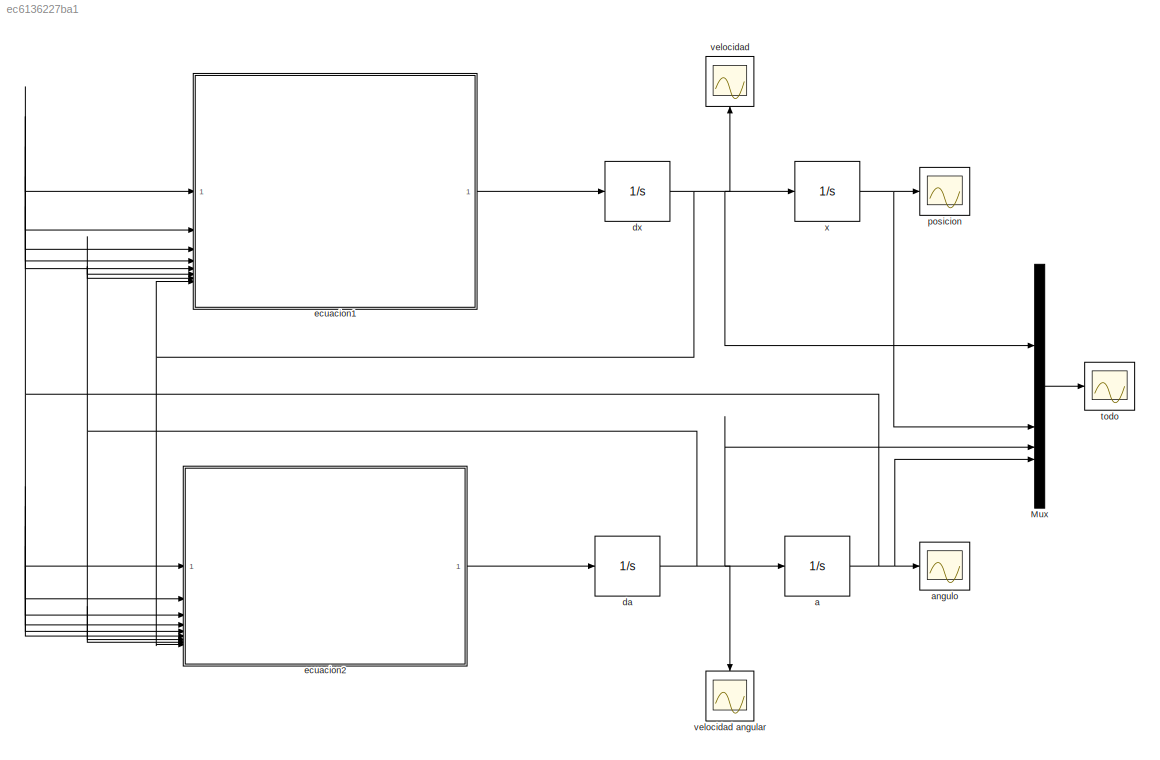
MODEL slx_ec6136227ba1
KIND model
CONFIG AbsTol = auto
CONFIG EnableMultiTasking = off
CONFIG FixedStep = auto
CONFIG InitFcn = Ip = 0.0079;      % Momento de inercia del péndulo\nMc = 0.7031;      % Masa del carro\nLp = 0.3302;      % Longitud desde el pivote hasta el centro de gravedad \nMp = 0.23;        % Masa del péndulo \nFc = 0;           % Fuerza aplicada al carro\nBeq = 4.3;        % Coeficiente de amortiguamiento viscoso del motor \ng = 9.81;         % Gravedad\nBp = 0.0024;   
CONFIG MaxStep = auto
CONFIG MinStep = auto
CONFIG RelTol = 1e-3
CONFIG SampleTimeConstraint = Unconstrained
CONFIG SolverName = ode45
CONFIG StartTime = 0.0
CONFIG StopTime = 10.0
BLOCK [Mux] Mux
  DisplayOption = bar
BLOCK [Integrator] a
  InitialCondition = 0.017
BLOCK [Scope] angulo
  Floating = off
  NumInputPorts = 1
  ScopeSpecificationString = Simulink.scopes.TimeScopeBlockCfg('CurrentConfiguration', extmgr.ConfigurationSet(extmgr.Configuration('Core','General UI',true),extmgr.Configuration('Core','Source UI',true),extmgr.Configuration('Sources','WiredSimulink',true),extmgr.Configuration('Visuals','Time Domain',true,'SerializedDisplays',{struct('MinYLimReal','-12.31989','MaxYLimReal','111.04903','YLabelReal','','MinYLimMag','0.00000','M...<+1490ch>
BLOCK [Integrator] da
BLOCK [Integrator] dx
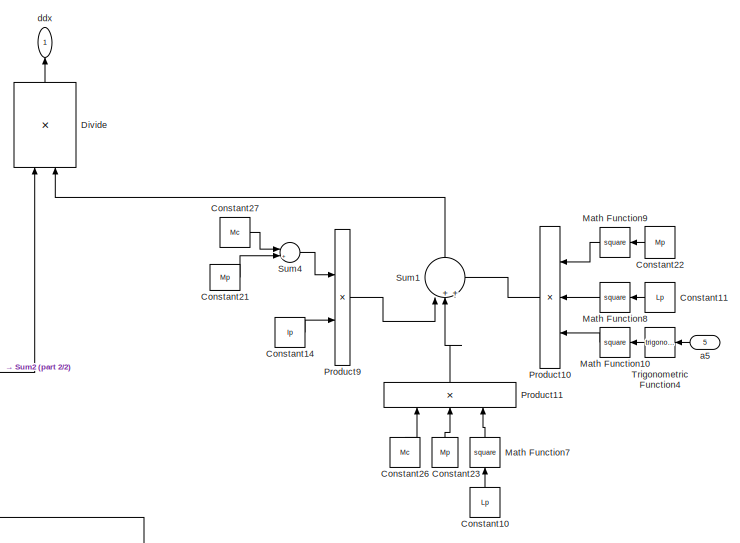
[diagram: ecuacion1 - part 1/2, top right region]
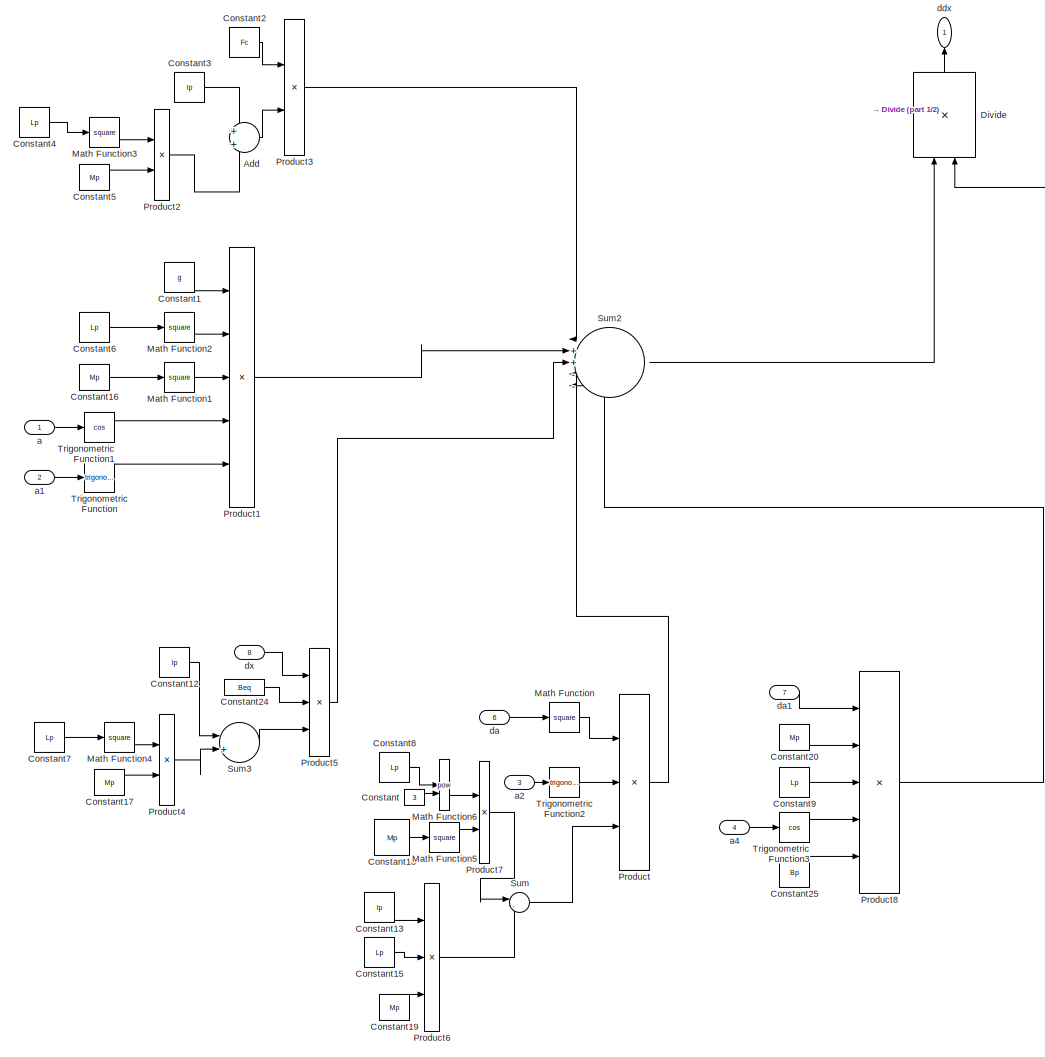
[diagram: ecuacion1 - part 2/2, left side, full height]
BLOCK [SubSystem] ecuacion1
BLOCK [Sum] ecuacion1/Add
BLOCK [Constant] ecuacion1/Constant
  Value = 3
BLOCK [Constant] ecuacion1/Constant1
  Value = g
BLOCK [Constant] ecuacion1/Constant10
  NameLocation = right
  Value = Lp
BLOCK [Constant] ecuacion1/Constant11
  NameLocation = top
  Value = Lp
BLOCK [Constant] ecuacion1/Constant12
  Value = Ip
BLOCK [Constant] ecuacion1/Constant13
  Value = Ip
BLOCK [Constant] ecuacion1/Constant14
  Value = Ip
BLOCK [Constant] ecuacion1/Constant15
  Value = Lp
BLOCK [Constant] ecuacion1/Constant16
  SampleTime = -1
  Value = Mp
  VectorParams1D = off
BLOCK [Constant] ecuacion1/Constant17
  SampleTime = -1
  Value = Mp
  VectorParams1D = off
BLOCK [Constant] ecuacion1/Constant18
  SampleTime = -1
  Value = Mp
  VectorParams1D = off
BLOCK [Constant] ecuacion1/Constant19
  SampleTime = -1
  Value = Mp
  VectorParams1D = off
BLOCK [Constant] ecuacion1/Constant2
  Value = Fc
BLOCK [Constant] ecuacion1/Constant20
  SampleTime = -1
  Value = Mp
  VectorParams1D = off
BLOCK [Constant] ecuacion1/Constant21
  SampleTime = -1
  Value = Mp
  VectorParams1D = off
BLOCK [Constant] ecuacion1/Constant22
  NameLocation = top
  SampleTime = -1
  Value = Mp
  VectorParams1D = off
BLOCK [Constant] ecuacion1/Constant23
  NameLocation = right
  SampleTime = -1
  Value = Mp
  VectorParams1D = off
BLOCK [Constant] ecuacion1/Constant24
  Value = Beq
BLOCK [Constant] ecuacion1/Constant25
  Value = Bp
BLOCK [Constant] ecuacion1/Constant26
  NameLocation = right
  Value = Mc
BLOCK [Constant] ecuacion1/Constant27
  Value = Mc
BLOCK [Constant] ecuacion1/Constant3
  Value = Ip
BLOCK [Constant] ecuacion1/Constant4
  Value = Lp
BLOCK [Constant] ecuacion1/Constant5
  SampleTime = -1
  Value = Mp
  VectorParams1D = off
BLOCK [Constant] ecuacion1/Constant6
  Value = Lp
BLOCK [Constant] ecuacion1/Constant7
  Value = Lp
BLOCK [Constant] ecuacion1/Constant8
  Value = Lp
BLOCK [Constant] ecuacion1/Constant9
  Value = Lp
BLOCK [Product] ecuacion1/Divide
  Inputs = */
  NameLocation = right
BLOCK [Math] ecuacion1/Math Function
  Operator = square
BLOCK [Math] ecuacion1/Math Function1
  Operator = square
BLOCK [Math] ecuacion1/Math Function10
  NameLocation = top
  Operator = square
BLOCK [Math] ecuacion1/Math Function2
  Operator = square
BLOCK [Math] ecuacion1/Math Function3
  Operator = square
BLOCK [Math] ecuacion1/Math Function4
  Operator = square
BLOCK [Math] ecuacion1/Math Function5
  Operator = square
BLOCK [Math] ecuacion1/Math Function6
  Operator = pow
BLOCK [Math] ecuacion1/Math Function7
  NameLocation = right
  Operator = square
BLOCK [Math] ecuacion1/Math Function8
  NameLocation = top
  Operator = square
BLOCK [Math] ecuacion1/Math Function9
  NameLocation = top
  Operator = square
BLOCK [Product] ecuacion1/Product
  Inputs = 3
BLOCK [Product] ecuacion1/Product1
  Inputs = 5
BLOCK [Product] ecuacion1/Product10
  Inputs = 3
  NameLocation = top
BLOCK [Product] ecuacion1/Product11
  Inputs = 3
  NameLocation = right
BLOCK [Product] ecuacion1/Product2
BLOCK [Product] ecuacion1/Product3
BLOCK [Product] ecuacion1/Product4
BLOCK [Product] ecuacion1/Product5
  Inputs = 3
BLOCK [Product] ecuacion1/Product6
  Inputs = 3
BLOCK [Product] ecuacion1/Product7
BLOCK [Product] ecuacion1/Product8
  Inputs = 5
BLOCK [Product] ecuacion1/Product9
BLOCK [Sum] ecuacion1/Sum
  Inputs = |-+
BLOCK [Sum] ecuacion1/Sum1
  Inputs = |+++
  NameLocation = right
BLOCK [Sum] ecuacion1/Sum2
  Inputs = |++---
BLOCK [Sum] ecuacion1/Sum3
  Inputs = |++
BLOCK [Sum] ecuacion1/Sum4
  Inputs = |++
BLOCK [Trigonometry] ecuacion1/Trigonometric Function
BLOCK [Trigonometry] ecuacion1/Trigonometric Function1
  Operator = cos
BLOCK [Trigonometry] ecuacion1/Trigonometric Function2
BLOCK [Trigonometry] ecuacion1/Trigonometric Function3
  Operator = cos
BLOCK [Trigonometry] ecuacion1/Trigonometric Function4
  NameLocation = top
BLOCK [Inport] ecuacion1/a
BLOCK [Inport] ecuacion1/a1
  Port = 2
BLOCK [Inport] ecuacion1/a2
  Port = 3
BLOCK [Inport] ecuacion1/a4
  Port = 4
BLOCK [Inport] ecuacion1/a5
  NameLocation = top
  Port = 5
BLOCK [Inport] ecuacion1/da
  Port = 6
BLOCK [Inport] ecuacion1/da1
  Port = 7
BLOCK [Outport] ecuacion1/ddx
  NameLocation = right
BLOCK [Inport] ecuacion1/dx
  Port = 8
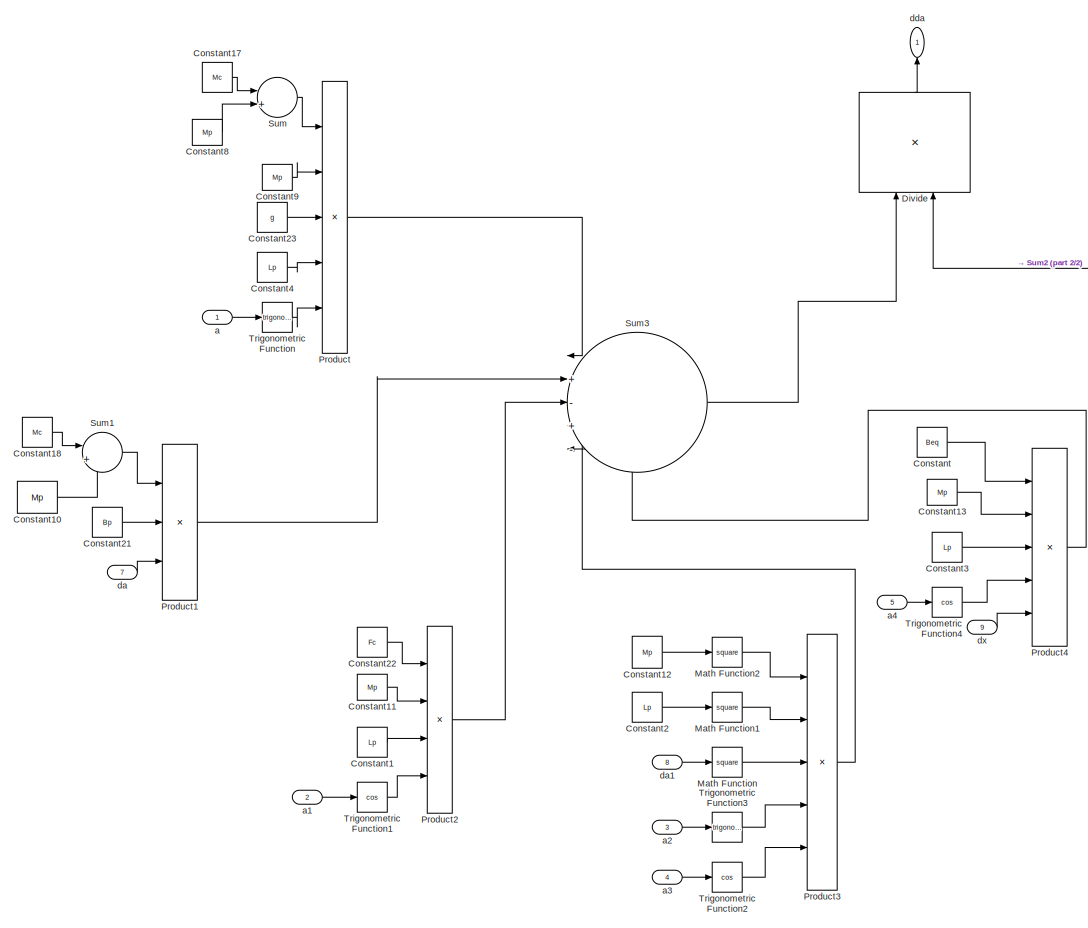
[diagram: ecuacion2 - part 1/2, left side, full height]
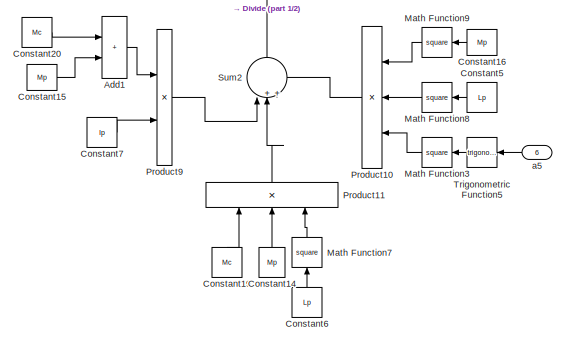
[diagram: ecuacion2 - part 2/2, middle right region]
BLOCK [SubSystem] ecuacion2
BLOCK [Sum] ecuacion2/Add1
  IconShape = rectangular
BLOCK [Constant] ecuacion2/Constant
  Value = Beq
BLOCK [Constant] ecuacion2/Constant1
  Value = Lp
BLOCK [Constant] ecuacion2/Constant10
  SampleTime = -1
  Value = Mp
  VectorParams1D = off
BLOCK [Constant] ecuacion2/Constant11
  SampleTime = -1
  Value = Mp
  VectorParams1D = off
BLOCK [Constant] ecuacion2/Constant12
  SampleTime = -1
  Value = Mp
  VectorParams1D = off
BLOCK [Constant] ecuacion2/Constant13
  SampleTime = -1
  Value = Mp
  VectorParams1D = off
BLOCK [Constant] ecuacion2/Constant14
  NameLocation = right
  SampleTime = -1
  Value = Mp
  VectorParams1D = off
BLOCK [Constant] ecuacion2/Constant15
  SampleTime = -1
  Value = Mp
  VectorParams1D = off
BLOCK [Constant] ecuacion2/Constant16
  NameLocation = top
  SampleTime = -1
  Value = Mp
  VectorParams1D = off
BLOCK [Constant] ecuacion2/Constant17
  Value = Mc
BLOCK [Constant] ecuacion2/Constant18
  Value = Mc
BLOCK [Constant] ecuacion2/Constant19
  NameLocation = right
  Value = Mc
BLOCK [Constant] ecuacion2/Constant2
  Value = Lp
BLOCK [Constant] ecuacion2/Constant20
  Value = Mc
BLOCK [Constant] ecuacion2/Constant21
  Value = Bp
BLOCK [Constant] ecuacion2/Constant22
  Value = Fc
BLOCK [Constant] ecuacion2/Constant23
  Value = g
BLOCK [Constant] ecuacion2/Constant3
  Value = Lp
BLOCK [Constant] ecuacion2/Constant4
  Value = Lp
BLOCK [Constant] ecuacion2/Constant5
  NameLocation = top
  Value = Lp
BLOCK [Constant] ecuacion2/Constant6
  NameLocation = right
  Value = Lp
BLOCK [Constant] ecuacion2/Constant7
  Value = Ip
BLOCK [Constant] ecuacion2/Constant8
  SampleTime = -1
  Value = Mp
  VectorParams1D = off
BLOCK [Constant] ecuacion2/Constant9
  SampleTime = -1
  Value = Mp
  VectorParams1D = off
BLOCK [Product] ecuacion2/Divide
  Inputs = */
  NameLocation = right
BLOCK [Math] ecuacion2/Math Function
  Operator = square
BLOCK [Math] ecuacion2/Math Function1
  Operator = square
BLOCK [Math] ecuacion2/Math Function2
  Operator = square
BLOCK [Math] ecuacion2/Math Function3
  NameLocation = top
  Operator = square
BLOCK [Math] ecuacion2/Math Function7
  NameLocation = right
  Operator = square
BLOCK [Math] ecuacion2/Math Function8
  NameLocation = top
  Operator = square
BLOCK [Math] ecuacion2/Math Function9
  NameLocation = top
  Operator = square
BLOCK [Product] ecuacion2/Product
  Inputs = 5
BLOCK [Product] ecuacion2/Product1
  Inputs = 3
BLOCK [Product] ecuacion2/Product10
  Inputs = 3
  NameLocation = top
BLOCK [Product] ecuacion2/Product11
  Inputs = 3
  NameLocation = right
BLOCK [Product] ecuacion2/Product2
  Inputs = 4
BLOCK [Product] ecuacion2/Product3
  Inputs = 5
BLOCK [Product] ecuacion2/Product4
  Inputs = 5
BLOCK [Product] ecuacion2/Product9
BLOCK [Sum] ecuacion2/Sum
  Inputs = |++
BLOCK [Sum] ecuacion2/Sum1
  Inputs = |++
BLOCK [Sum] ecuacion2/Sum2
  Inputs = |+++
  NameLocation = right
BLOCK [Sum] ecuacion2/Sum3
  Inputs = |+-+--
BLOCK [Trigonometry] ecuacion2/Trigonometric Function
BLOCK [Trigonometry] ecuacion2/Trigonometric Function1
  Operator = cos
BLOCK [Trigonometry] ecuacion2/Trigonometric Function2
  Operator = cos
BLOCK [Trigonometry] ecuacion2/Trigonometric Function3
BLOCK [Trigonometry] ecuacion2/Trigonometric Function4
  Operator = cos
BLOCK [Trigonometry] ecuacion2/Trigonometric Function5
  NameLocation = top
BLOCK [Inport] ecuacion2/a
BLOCK [Inport] ecuacion2/a1
  Port = 2
BLOCK [Inport] ecuacion2/a2
  Port = 3
BLOCK [Inport] ecuacion2/a3
  Port = 4
BLOCK [Inport] ecuacion2/a4
  Port = 5
BLOCK [Inport] ecuacion2/a5
  NameLocation = top
  Port = 6
BLOCK [Inport] ecuacion2/da
  Port = 7
BLOCK [Inport] ecuacion2/da1
  Port = 8
BLOCK [Outport] ecuacion2/dda
  NameLocation = right
BLOCK [Inport] ecuacion2/dx
  Port = 9
BLOCK [Scope] posicion
  Floating = off
  NumInputPorts = 1
  ScopeSpecificationString = Simulink.scopes.TimeScopeBlockCfg('CurrentConfiguration', extmgr.ConfigurationSet(extmgr.Configuration('Core','General UI',true,'FigureColor',[0 0 0]),extmgr.Configuration('Core','Source UI',true),extmgr.Configuration('Sources','WiredSimulink',true,'DataLoggingVariableName','ScopeData1'),extmgr.Configuration('Visuals','Time Domain',true,'SerializedDisplays',{struct('MinYLimReal','-0.01938','MaxYLi...<+1541ch>
BLOCK [Scope] todo
  Floating = off
  NumInputPorts = 1
  ScopeSpecificationString = Simulink.scopes.TimeScopeBlockCfg('CurrentConfiguration', extmgr.ConfigurationSet(extmgr.Configuration('Core','General UI',true),extmgr.Configuration('Core','Source UI',true),extmgr.Configuration('Sources','WiredSimulink',true,'DataLoggingVariableName','ScopeData4'),extmgr.Configuration('Visuals','Time Domain',true,'SerializedDisplays',{struct('MinYLimReal','-13.21109','MaxYLimReal','111.14805','Y...<+1940ch>
BLOCK [Scope] velocidad
  Floating = off
  NameLocation = right
  NumInputPorts = 1
  ScopeSpecificationString = Simulink.scopes.TimeScopeBlockCfg('CurrentConfiguration', extmgr.ConfigurationSet(extmgr.Configuration('Core','General UI',true),extmgr.Configuration('Core','Source UI',true),extmgr.Configuration('Sources','WiredSimulink',true,'DataLoggingVariableName','ScopeData2'),extmgr.Configuration('Visuals','Time Domain',true,'SerializedDisplays',{struct('MinYLimReal','-0.96803','MaxYLimReal','0.96046','YLab...<+1546ch>
BLOCK [Scope] velocidad angular
  Floating = off
  NameLocation = left
  NumInputPorts = 1
  ScopeSpecificationString = Simulink.scopes.TimeScopeBlockCfg('CurrentConfiguration', extmgr.ConfigurationSet(extmgr.Configuration('Core','General UI',true),extmgr.Configuration('Core','Source UI',true),extmgr.Configuration('Sources','WiredSimulink',true,'DataLoggingVariableName','ScopeData3'),extmgr.Configuration('Visuals','Time Domain',true,'SerializedDisplays',{struct('MinYLimReal','-2.7366','MaxYLimReal','24.62943','YLab...<+1520ch>
BLOCK [Integrator] x
LINE Mux:1 -> todo:1
NET a:1 -> Mux:4, angulo:1, ecuacion1:1, ecuacion1:2, ecuacion1:3, ecuacion1:4, ecuacion1:5, ecuacion2:1, ecuacion2:2, ecuacion2:3, ecuacion2:4, ecuacion2:5, ecuacion2:6
NET da:1 -> Mux:3, a:1, ecuacion1:6, ecuacion1:7, ecuacion2:7, ecuacion2:8, velocidad angular:1
NET dx:1 -> Mux:1, ecuacion1:8, ecuacion2:9, velocidad:1, x:1
LINE ecuacion1/Add:1 -> ecuacion1/Product3:2
LINE ecuacion1/Constant10:1 -> ecuacion1/Math Function7:1
LINE ecuacion1/Constant11:1 -> ecuacion1/Math Function8:1
LINE ecuacion1/Constant12:1 -> ecuacion1/Sum3:1
LINE ecuacion1/Constant13:1 -> ecuacion1/Product6:1
LINE ecuacion1/Constant14:1 -> ecuacion1/Product9:2
LINE ecuacion1/Constant15:1 -> ecuacion1/Product6:2
LINE ecuacion1/Constant16:1 -> ecuacion1/Math Function1:1
LINE ecuacion1/Constant17:1 -> ecuacion1/Product4:2
LINE ecuacion1/Constant18:1 -> ecuacion1/Math Function5:1
LINE ecuacion1/Constant19:1 -> ecuacion1/Product6:3
LINE ecuacion1/Constant1:1 -> ecuacion1/Product1:1
LINE ecuacion1/Constant20:1 -> ecuacion1/Product8:2
LINE ecuacion1/Constant21:1 -> ecuacion1/Sum4:2
LINE ecuacion1/Constant22:1 -> ecuacion1/Math Function9:1
LINE ecuacion1/Constant23:1 -> ecuacion1/Product11:2
LINE ecuacion1/Constant24:1 -> ecuacion1/Product5:2
LINE ecuacion1/Constant25:1 -> ecuacion1/Product8:5
LINE ecuacion1/Constant26:1 -> ecuacion1/Product11:1
LINE ecuacion1/Constant27:1 -> ecuacion1/Sum4:1
LINE ecuacion1/Constant2:1 -> ecuacion1/Product3:1
LINE ecuacion1/Constant3:1 -> ecuacion1/Add:1
LINE ecuacion1/Constant4:1 -> ecuacion1/Math Function3:1
LINE ecuacion1/Constant5:1 -> ecuacion1/Product2:2
LINE ecuacion1/Constant6:1 -> ecuacion1/Math Function2:1
LINE ecuacion1/Constant7:1 -> ecuacion1/Math Function4:1
LINE ecuacion1/Constant8:1 -> ecuacion1/Math Function6:1
LINE ecuacion1/Constant9:1 -> ecuacion1/Product8:3
LINE ecuacion1/Constant:1 -> ecuacion1/Math Function6:2
LINE ecuacion1/Divide:1 -> ecuacion1/ddx:1
LINE ecuacion1/Math Function10:1 -> ecuacion1/Product10:3
LINE ecuacion1/Math Function1:1 -> ecuacion1/Product1:3
LINE ecuacion1/Math Function2:1 -> ecuacion1/Product1:2
LINE ecuacion1/Math Function3:1 -> ecuacion1/Product2:1
LINE ecuacion1/Math Function4:1 -> ecuacion1/Product4:1
LINE ecuacion1/Math Function5:1 -> ecuacion1/Product7:2
LINE ecuacion1/Math Function6:1 -> ecuacion1/Product7:1
LINE ecuacion1/Math Function7:1 -> ecuacion1/Product11:3
LINE ecuacion1/Math Function8:1 -> ecuacion1/Product10:2
LINE ecuacion1/Math Function9:1 -> ecuacion1/Product10:1
LINE ecuacion1/Math Function:1 -> ecuacion1/Product:1
LINE ecuacion1/Product10:1 -> ecuacion1/Sum1:3
LINE ecuacion1/Product11:1 -> ecuacion1/Sum1:2
LINE ecuacion1/Product1:1 -> ecuacion1/Sum2:2
LINE ecuacion1/Product2:1 -> ecuacion1/Add:2
LINE ecuacion1/Product3:1 -> ecuacion1/Sum2:1
LINE ecuacion1/Product4:1 -> ecuacion1/Sum3:2
LINE ecuacion1/Product5:1 -> ecuacion1/Sum2:3
LINE ecuacion1/Product6:1 -> ecuacion1/Sum:2
LINE ecuacion1/Product7:1 -> ecuacion1/Sum:1
LINE ecuacion1/Product8:1 -> ecuacion1/Sum2:5
LINE ecuacion1/Product9:1 -> ecuacion1/Sum1:1
LINE ecuacion1/Product:1 -> ecuacion1/Sum2:4
LINE ecuacion1/Sum1:1 -> ecuacion1/Divide:2
LINE ecuacion1/Sum2:1 -> ecuacion1/Divide:1
LINE ecuacion1/Sum3:1 -> ecuacion1/Product5:3
LINE ecuacion1/Sum4:1 -> ecuacion1/Product9:1
LINE ecuacion1/Sum:1 -> ecuacion1/Product:3
LINE ecuacion1/Trigonometric Function1:1 -> ecuacion1/Product1:4
LINE ecuacion1/Trigonometric Function2:1 -> ecuacion1/Product:2
LINE ecuacion1/Trigonometric Function3:1 -> ecuacion1/Product8:4
LINE ecuacion1/Trigonometric Function4:1 -> ecuacion1/Math Function10:1
LINE ecuacion1/Trigonometric Function:1 -> ecuacion1/Product1:5
LINE ecuacion1/a1:1 -> ecuacion1/Trigonometric Function:1
LINE ecuacion1/a2:1 -> ecuacion1/Trigonometric Function2:1
LINE ecuacion1/a4:1 -> ecuacion1/Trigonometric Function3:1
LINE ecuacion1/a5:1 -> ecuacion1/Trigonometric Function4:1
LINE ecuacion1/a:1 -> ecuacion1/Trigonometric Function1:1
LINE ecuacion1/da1:1 -> ecuacion1/Product8:1
LINE ecuacion1/da:1 -> ecuacion1/Math Function:1
LINE ecuacion1/dx:1 -> ecuacion1/Product5:1
LINE ecuacion1:1 -> dx:1
LINE ecuacion2/Add1:1 -> ecuacion2/Product9:1
LINE ecuacion2/Constant10:1 -> ecuacion2/Sum1:2
LINE ecuacion2/Constant11:1 -> ecuacion2/Product2:2
LINE ecuacion2/Constant12:1 -> ecuacion2/Math Function2:1
LINE ecuacion2/Constant13:1 -> ecuacion2/Product4:2
LINE ecuacion2/Constant14:1 -> ecuacion2/Product11:2
LINE ecuacion2/Constant15:1 -> ecuacion2/Add1:2
LINE ecuacion2/Constant16:1 -> ecuacion2/Math Function9:1
LINE ecuacion2/Constant17:1 -> ecuacion2/Sum:1
LINE ecuacion2/Constant18:1 -> ecuacion2/Sum1:1
LINE ecuacion2/Constant19:1 -> ecuacion2/Product11:1
LINE ecuacion2/Constant1:1 -> ecuacion2/Product2:3
LINE ecuacion2/Constant20:1 -> ecuacion2/Add1:1
LINE ecuacion2/Constant21:1 -> ecuacion2/Product1:2
LINE ecuacion2/Constant22:1 -> ecuacion2/Product2:1
LINE ecuacion2/Constant23:1 -> ecuacion2/Product:3
LINE ecuacion2/Constant2:1 -> ecuacion2/Math Function1:1
LINE ecuacion2/Constant3:1 -> ecuacion2/Product4:3
LINE ecuacion2/Constant4:1 -> ecuacion2/Product:4
LINE ecuacion2/Constant5:1 -> ecuacion2/Math Function8:1
LINE ecuacion2/Constant6:1 -> ecuacion2/Math Function7:1
LINE ecuacion2/Constant7:1 -> ecuacion2/Product9:2
LINE ecuacion2/Constant8:1 -> ecuacion2/Sum:2
LINE ecuacion2/Constant9:1 -> ecuacion2/Product:2
LINE ecuacion2/Constant:1 -> ecuacion2/Product4:1
LINE ecuacion2/Divide:1 -> ecuacion2/dda:1
LINE ecuacion2/Math Function1:1 -> ecuacion2/Product3:2
LINE ecuacion2/Math Function2:1 -> ecuacion2/Product3:1
LINE ecuacion2/Math Function3:1 -> ecuacion2/Product10:3
LINE ecuacion2/Math Function7:1 -> ecuacion2/Product11:3
LINE ecuacion2/Math Function8:1 -> ecuacion2/Product10:2
LINE ecuacion2/Math Function9:1 -> ecuacion2/Product10:1
LINE ecuacion2/Math Function:1 -> ecuacion2/Product3:3
LINE ecuacion2/Product10:1 -> ecuacion2/Sum2:3
LINE ecuacion2/Product11:1 -> ecuacion2/Sum2:2
LINE ecuacion2/Product1:1 -> ecuacion2/Sum3:2
LINE ecuacion2/Product2:1 -> ecuacion2/Sum3:3
LINE ecuacion2/Product3:1 -> ecuacion2/Sum3:4
LINE ecuacion2/Product4:1 -> ecuacion2/Sum3:5
LINE ecuacion2/Product9:1 -> ecuacion2/Sum2:1
LINE ecuacion2/Product:1 -> ecuacion2/Sum3:1
LINE ecuacion2/Sum1:1 -> ecuacion2/Product1:1
LINE ecuacion2/Sum2:1 -> ecuacion2/Divide:2
LINE ecuacion2/Sum3:1 -> ecuacion2/Divide:1
LINE ecuacion2/Sum:1 -> ecuacion2/Product:1
LINE ecuacion2/Trigonometric Function1:1 -> ecuacion2/Product2:4
LINE ecuacion2/Trigonometric Function2:1 -> ecuacion2/Product3:5
LINE ecuacion2/Trigonometric Function3:1 -> ecuacion2/Product3:4
LINE ecuacion2/Trigonometric Function4:1 -> ecuacion2/Product4:4
LINE ecuacion2/Trigonometric Function5:1 -> ecuacion2/Math Function3:1
LINE ecuacion2/Trigonometric Function:1 -> ecuacion2/Product:5
LINE ecuacion2/a1:1 -> ecuacion2/Trigonometric Function1:1
LINE ecuacion2/a2:1 -> ecuacion2/Trigonometric Function3:1
LINE ecuacion2/a3:1 -> ecuacion2/Trigonometric Function2:1
LINE ecuacion2/a4:1 -> ecuacion2/Trigonometric Function4:1
LINE ecuacion2/a5:1 -> ecuacion2/Trigonometric Function5:1
LINE ecuacion2/a:1 -> ecuacion2/Trigonometric Function:1
LINE ecuacion2/da1:1 -> ecuacion2/Math Function:1
LINE ecuacion2/da:1 -> ecuacion2/Product1:3
LINE ecuacion2/dx:1 -> ecuacion2/Product4:5
LINE ecuacion2:1 -> da:1
NET x:1 -> Mux:2, posicion:1
note: NET lines group one-source signal fan-out (src -> all destinations, sorted); 1:1 wires keep LINE
